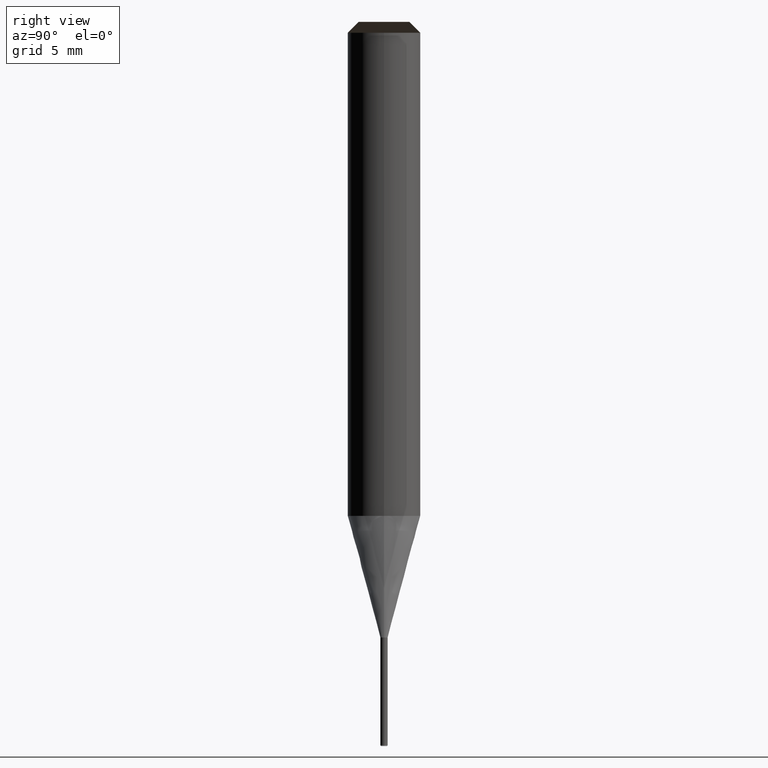
[diagram: clean part render]
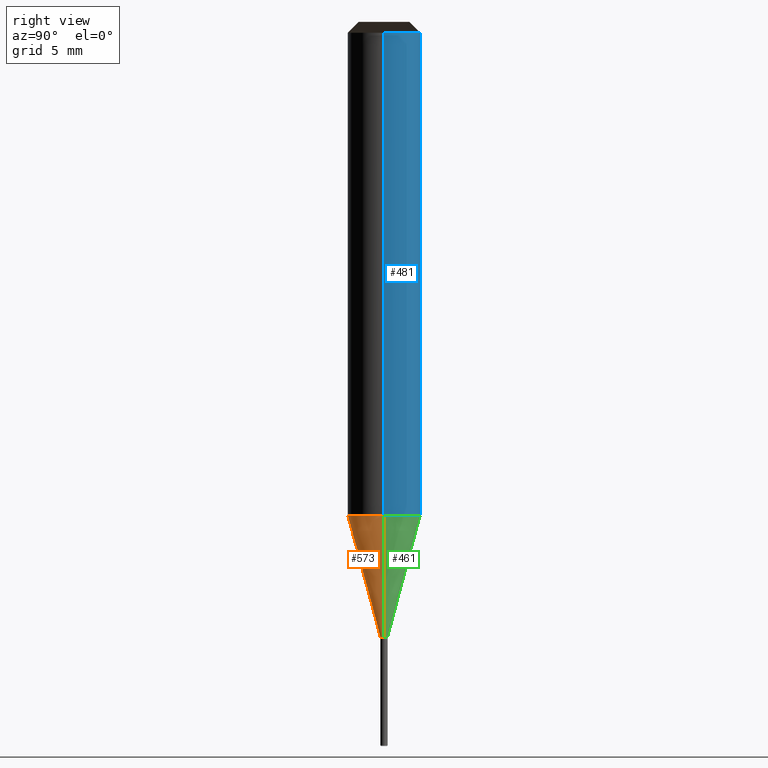
[diagram: same view with three faces highlighted in distinct colors, each labeled with its STEP entity id]
A machine part, right view with three faces highlighted in distinct colors.
Their STEP definitions:

[orange] entity #573 — the highlighted face is a freeform B-spline surface patch.
#220=CARTESIAN_POINT('',(0.2,0.0,-6.717691453624));
#224=CARTESIAN_POINT('',(-0.2,0.0,-6.717691453624));
#225=CARTESIAN_POINT('',(2.0,0.0,0.0));
#229=CARTESIAN_POINT('',(-2.0,0.0,0.0));
#241=CARTESIAN_POINT('',(-0.2,-0.2,-6.717691453624));
#242=CARTESIAN_POINT('',(0.0,-0.2,-6.717691453624));
#243=CARTESIAN_POINT('',(0.2,-0.2,-6.717691453624));
#244=CARTESIAN_POINT('',(-2.0,-2.0,0.0));
#245=CARTESIAN_POINT('',(0.0,-2.0,0.0));
#246=CARTESIAN_POINT('',(2.0,-2.0,0.0));
#554=(
BOUNDED_SURFACE()
B_SPLINE_SURFACE(1,2,(
(#224,#241,#242,#243,#220),
(#229,#244,#245,#246,#225)
), .UNSPECIFIED.,.F.,.F.,.F.)
B_SPLINE_SURFACE_WITH_KNOTS((2,2),(3,2,3),(
0.0,1.0),(
0.0,0.5,1.0), .UNSPECIFIED.)
GEOMETRIC_REPRESENTATION_ITEM()
RATIONAL_B_SPLINE_SURFACE(((1.0,0.707106781187,1.0,0.707106781187,1.0),
(1.0,0.707106781187,1.0,0.707106781187,1.0)
))
REPRESENTATION_ITEM('')
SURFACE()
);
#555=(
BOUNDED_CURVE()
B_SPLINE_CURVE(1,(#229,#224),.UNSPECIFIED.,.F.,.F.)
B_SPLINE_CURVE_WITH_KNOTS((2,2),
(0.0,1.0),.UNSPECIFIED.)
CURVE()
GEOMETRIC_REPRESENTATION_ITEM()
RATIONAL_B_SPLINE_CURVE((1.0,1.0))
REPRESENTATION_ITEM('')
);
#556=(
BOUNDED_CURVE()
B_SPLINE_CURVE(2,(#224,#241,#242,#243,#220),.UNSPECIFIED.,.F.,.F.)
B_SPLINE_CURVE_WITH_KNOTS((3,2,3),
(0.0,0.5,1.0),.UNSPECIFIED.)
CURVE()
GEOMETRIC_REPRESENTATION_ITEM()
RATIONAL_B_SPLINE_CURVE((1.0,0.707106781187,1.0,0.707106781187,1.0))
REPRESENTATION_ITEM('')
);
#557=(
BOUNDED_CURVE()
B_SPLINE_CURVE(1,(#220,#225),.UNSPECIFIED.,.F.,.F.)
B_SPLINE_CURVE_WITH_KNOTS((2,2),
(0.0,1.0),.UNSPECIFIED.)
CURVE()
GEOMETRIC_REPRESENTATION_ITEM()
RATIONAL_B_SPLINE_CURVE((1.0,1.0))
REPRESENTATION_ITEM('')
);
#558=(
BOUNDED_CURVE()
B_SPLINE_CURVE(2,(#225,#246,#245,#244,#229),.UNSPECIFIED.,.F.,.F.)
B_SPLINE_CURVE_WITH_KNOTS((3,2,3),
(0.0,0.5,1.0),.UNSPECIFIED.)
CURVE()
GEOMETRIC_REPRESENTATION_ITEM()
RATIONAL_B_SPLINE_CURVE((1.0,0.707106781187,1.0,0.707106781187,1.0))
REPRESENTATION_ITEM('')
);
#559=VERTEX_POINT('',#220);
#560=VERTEX_POINT('',#224);
#561=VERTEX_POINT('',#225);
#562=VERTEX_POINT('',#229);
#563=EDGE_CURVE('',#562,#560,#555,.T.);
#564=EDGE_CURVE('',#560,#559,#556,.T.);
#565=EDGE_CURVE('',#559,#561,#557,.T.);
#566=EDGE_CURVE('',#561,#562,#558,.T.);
#567=ORIENTED_EDGE('',*,*,#563,.T.);
#568=ORIENTED_EDGE('',*,*,#564,.T.);
#569=ORIENTED_EDGE('',*,*,#565,.T.);
#570=ORIENTED_EDGE('',*,*,#566,.T.);
#571=EDGE_LOOP('',(#567,#568,#569,#570));
#572=FACE_OUTER_BOUND('',#571,.T.);
#573=ADVANCED_FACE('',(#572),#554,.T.);

[blue] entity #481 — the highlighted face is a freeform B-spline surface patch.
#225=CARTESIAN_POINT('',(2.0,0.0,0.0));
#226=CARTESIAN_POINT('',(2.0,2.0,0.0));
#227=CARTESIAN_POINT('',(0.0,2.0,0.0));
#228=CARTESIAN_POINT('',(-2.0,2.0,0.0));
#229=CARTESIAN_POINT('',(-2.0,0.0,0.0));
#230=CARTESIAN_POINT('',(2.0,0.0,26.682));
#231=CARTESIAN_POINT('',(2.0,2.0,26.682));
#232=CARTESIAN_POINT('',(0.0,2.0,26.682));
#233=CARTESIAN_POINT('',(-2.0,2.0,26.682));
#234=CARTESIAN_POINT('',(-2.0,0.0,26.682));
#462=(
BOUNDED_SURFACE()
B_SPLINE_SURFACE(1,2,(
(#225,#226,#227,#228,#229),
(#230,#231,#232,#233,#234)
), .UNSPECIFIED.,.F.,.F.,.F.)
B_SPLINE_SURFACE_WITH_KNOTS((2,2),(3,2,3),(
0.0,1.0),(
0.0,0.5,1.0), .UNSPECIFIED.)
GEOMETRIC_REPRESENTATION_ITEM()
RATIONAL_B_SPLINE_SURFACE(((1.0,0.707106781187,1.0,0.707106781187,1.0),
(1.0,0.707106781187,1.0,0.707106781187,1.0)
))
REPRESENTATION_ITEM('')
SURFACE()
);
#463=(
BOUNDED_CURVE()
B_SPLINE_CURVE(2,(#230,#231,#232,#233,#234),.UNSPECIFIED.,.F.,.F.)
B_SPLINE_CURVE_WITH_KNOTS((3,2,3),
(0.0,0.5,1.0),.UNSPECIFIED.)
CURVE()
GEOMETRIC_REPRESENTATION_ITEM()
RATIONAL_B_SPLINE_CURVE((1.0,0.707106781187,1.0,0.707106781187,1.0))
REPRESENTATION_ITEM('')
);
#464=(
BOUNDED_CURVE()
B_SPLINE_CURVE(1,(#234,#229),.UNSPECIFIED.,.F.,.F.)
B_SPLINE_CURVE_WITH_KNOTS((2,2),
(0.0,1.0),.UNSPECIFIED.)
CURVE()
GEOMETRIC_REPRESENTATION_ITEM()
RATIONAL_B_SPLINE_CURVE((1.0,1.0))
REPRESENTATION_ITEM('')
);
#465=(
BOUNDED_CURVE()
B_SPLINE_CURVE(2,(#229,#228,#227,#226,#225),.UNSPECIFIED.,.F.,.F.)
B_SPLINE_CURVE_WITH_KNOTS((3,2,3),
(0.0,0.5,1.0),.UNSPECIFIED.)
CURVE()
GEOMETRIC_REPRESENTATION_ITEM()
RATIONAL_B_SPLINE_CURVE((1.0,0.707106781187,1.0,0.707106781187,1.0))
REPRESENTATION_ITEM('')
);
#466=(
BOUNDED_CURVE()
B_SPLINE_CURVE(1,(#225,#230),.UNSPECIFIED.,.F.,.F.)
B_SPLINE_CURVE_WITH_KNOTS((2,2),
(0.0,1.0),.UNSPECIFIED.)
CURVE()
GEOMETRIC_REPRESENTATION_ITEM()
RATIONAL_B_SPLINE_CURVE((1.0,1.0))
REPRESENTATION_ITEM('')
);
#467=VERTEX_POINT('',#225);
#468=VERTEX_POINT('',#229);
#469=VERTEX_POINT('',#230);
#470=VERTEX_POINT('',#234);
#471=EDGE_CURVE('',#469,#470,#463,.T.);
#472=EDGE_CURVE('',#470,#468,#464,.T.);
#473=EDGE_CURVE('',#468,#467,#465,.T.);
#474=EDGE_CURVE('',#467,#469,#466,.T.);
#475=ORIENTED_EDGE('',*,*,#471,.T.);
#476=ORIENTED_EDGE('',*,*,#472,.T.);
#477=ORIENTED_EDGE('',*,*,#473,.T.);
#478=ORIENTED_EDGE('',*,*,#474,.T.);
#479=EDGE_LOOP('',(#475,#476,#477,#478));
#480=FACE_OUTER_BOUND('',#479,.T.);
#481=ADVANCED_FACE('',(#480),#462,.T.);

[green] entity #461 — the highlighted face is a freeform B-spline surface patch.
#220=CARTESIAN_POINT('',(0.2,0.0,-6.717691453624));
#221=CARTESIAN_POINT('',(0.2,0.2,-6.717691453624));
#222=CARTESIAN_POINT('',(0.0,0.2,-6.717691453624));
#223=CARTESIAN_POINT('',(-0.2,0.2,-6.717691453624));
#224=CARTESIAN_POINT('',(-0.2,0.0,-6.717691453624));
#225=CARTESIAN_POINT('',(2.0,0.0,0.0));
#226=CARTESIAN_POINT('',(2.0,2.0,0.0));
#227=CARTESIAN_POINT('',(0.0,2.0,0.0));
#228=CARTESIAN_POINT('',(-2.0,2.0,0.0));
#229=CARTESIAN_POINT('',(-2.0,0.0,0.0));
#442=(
BOUNDED_SURFACE()
B_SPLINE_SURFACE(1,2,(
(#220,#221,#222,#223,#224),
(#225,#226,#227,#228,#229)
), .UNSPECIFIED.,.F.,.F.,.F.)
B_SPLINE_SURFACE_WITH_KNOTS((2,2),(3,2,3),(
0.0,1.0),(
0.0,0.5,1.0), .UNSPECIFIED.)
GEOMETRIC_REPRESENTATION_ITEM()
RATIONAL_B_SPLINE_SURFACE(((1.0,0.707106781187,1.0,0.707106781187,1.0),
(1.0,0.707106781187,1.0,0.707106781187,1.0)
))
REPRESENTATION_ITEM('')
SURFACE()
);
#443=(
BOUNDED_CURVE()
B_SPLINE_CURVE(2,(#225,#226,#227,#228,#229),.UNSPECIFIED.,.F.,.F.)
B_SPLINE_CURVE_WITH_KNOTS((3,2,3),
(0.0,0.5,1.0),.UNSPECIFIED.)
CURVE()
GEOMETRIC_REPRESENTATION_ITEM()
RATIONAL_B_SPLINE_CURVE((1.0,0.707106781187,1.0,0.707106781187,1.0))
REPRESENTATION_ITEM('')
);
#444=(
BOUNDED_CURVE()
B_SPLINE_CURVE(1,(#229,#224),.UNSPECIFIED.,.F.,.F.)
B_SPLINE_CURVE_WITH_KNOTS((2,2),
(0.0,1.0),.UNSPECIFIED.)
CURVE()
GEOMETRIC_REPRESENTATION_ITEM()
RATIONAL_B_SPLINE_CURVE((1.0,1.0))
REPRESENTATION_ITEM('')
);
#445=(
BOUNDED_CURVE()
B_SPLINE_CURVE(2,(#224,#223,#222,#221,#220),.UNSPECIFIED.,.F.,.F.)
B_SPLINE_CURVE_WITH_KNOTS((3,2,3),
(0.0,0.5,1.0),.UNSPECIFIED.)
CURVE()
GEOMETRIC_REPRESENTATION_ITEM()
RATIONAL_B_SPLINE_CURVE((1.0,0.707106781187,1.0,0.707106781187,1.0))
REPRESENTATION_ITEM('')
);
#446=(
BOUNDED_CURVE()
B_SPLINE_CURVE(1,(#220,#225),.UNSPECIFIED.,.F.,.F.)
B_SPLINE_CURVE_WITH_KNOTS((2,2),
(0.0,1.0),.UNSPECIFIED.)
CURVE()
GEOMETRIC_REPRESENTATION_ITEM()
RATIONAL_B_SPLINE_CURVE((1.0,1.0))
REPRESENTATION_ITEM('')
);
#447=VERTEX_POINT('',#220);
#448=VERTEX_POINT('',#224);
#449=VERTEX_POINT('',#225);
#450=VERTEX_POINT('',#229);
#451=EDGE_CURVE('',#449,#450,#443,.T.);
#452=EDGE_CURVE('',#450,#448,#444,.T.);
#453=EDGE_CURVE('',#448,#447,#445,.T.);
#454=EDGE_CURVE('',#447,#449,#446,.T.);
#455=ORIENTED_EDGE('',*,*,#451,.T.);
#456=ORIENTED_EDGE('',*,*,#452,.T.);
#457=ORIENTED_EDGE('',*,*,#453,.T.);
#458=ORIENTED_EDGE('',*,*,#454,.T.);
#459=EDGE_LOOP('',(#455,#456,#457,#458));
#460=FACE_OUTER_BOUND('',#459,.T.);
#461=ADVANCED_FACE('',(#460),#442,.T.);